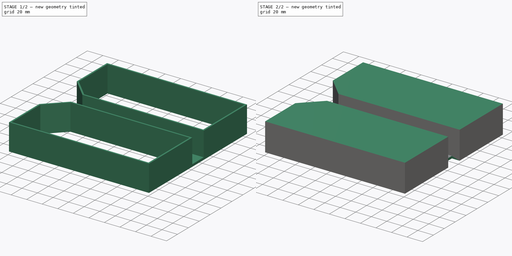
[diagram: build sequence overview — one tinted view per stage of 2, left to right]
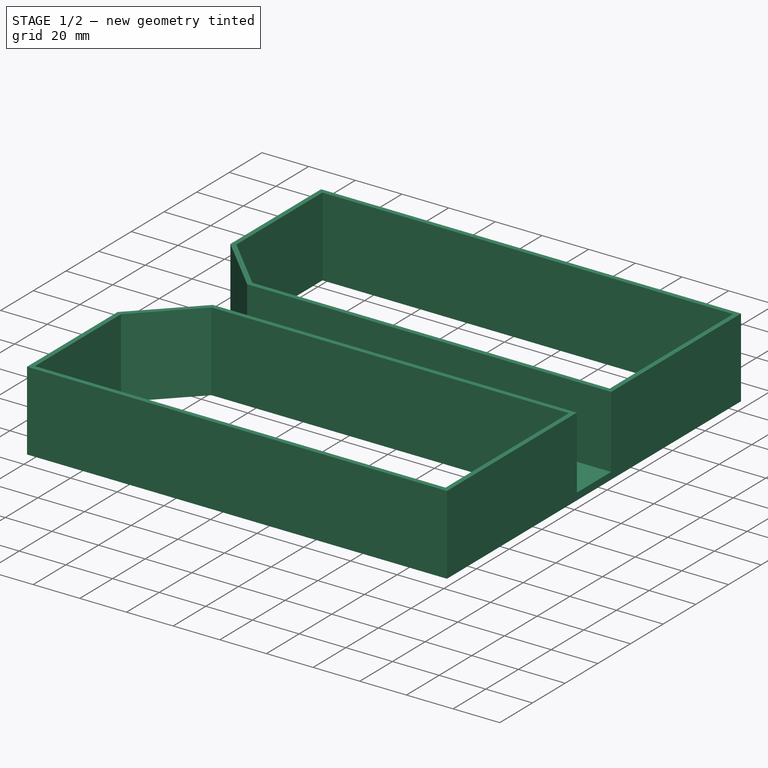
[diagram: stage 1 of 2 — iso view after this stage's code; geometry added in this stage tinted green]
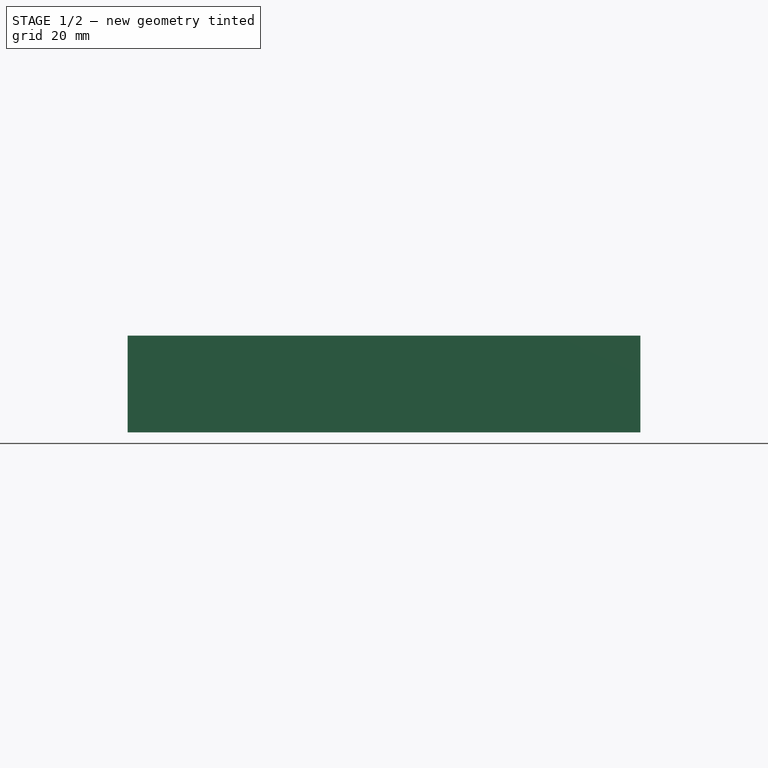
[diagram: stage 1 of 2 — front view after this stage's code; geometry added in this stage tinted green]
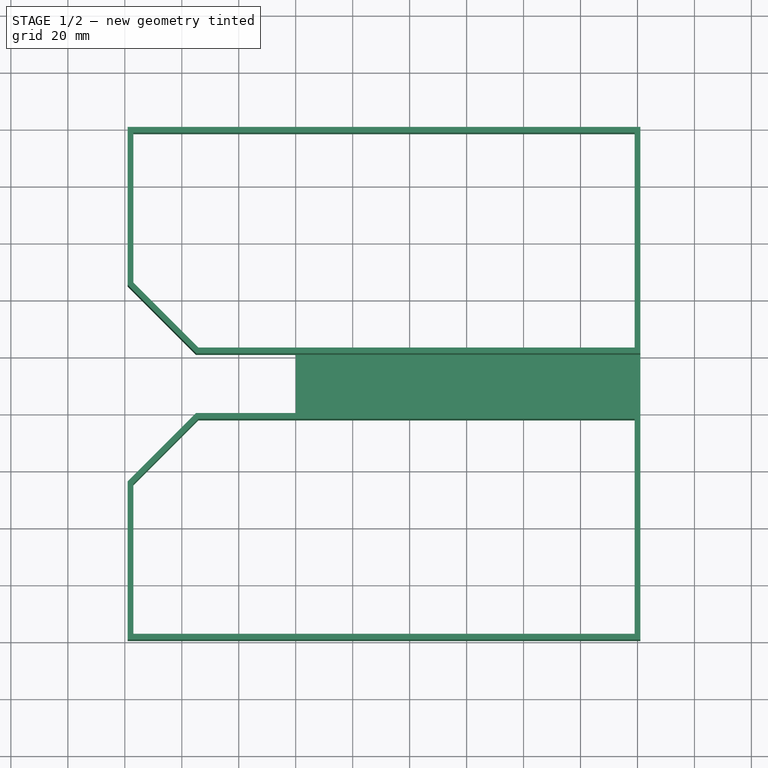
[diagram: stage 1 of 2 — top view after this stage's code; geometry added in this stage tinted green]
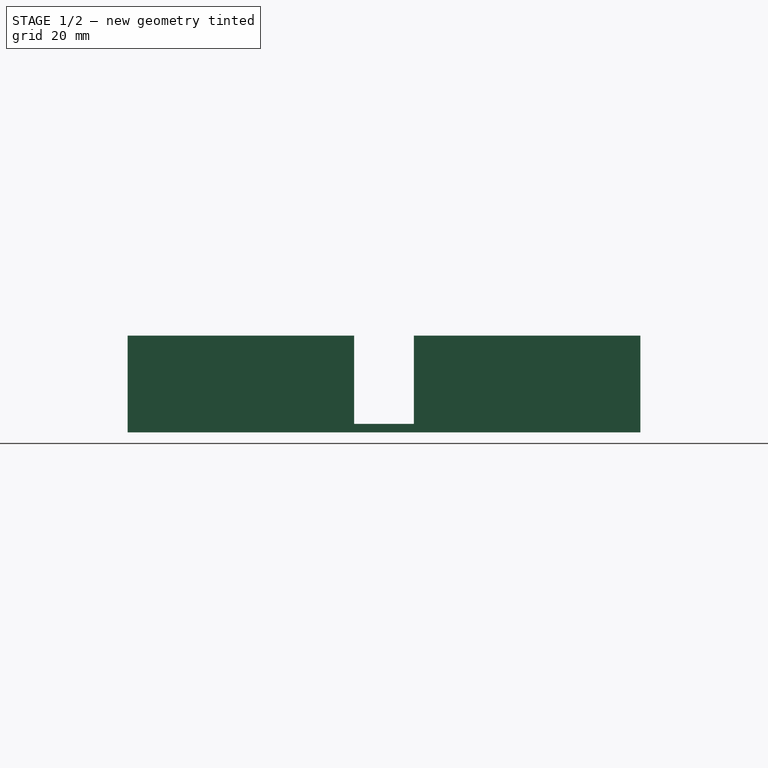
[diagram: stage 1 of 2 — right view after this stage's code; geometry added in this stage tinted green]
FCSTD DOCUMENT  (FreeCAD 1.0R)
Label: badminton_racket_stringing_machine_pockets
License: All rights reserved
LicenseURL: https://en.wikipedia.org/wiki/All_rights_reserved
objects: Sketcher::SketchObject×4, PartDesign::Pad×3, PartDesign::Pocket×1, PartDesign::Body×1
note: 21 computed .brp shape members not serialized (recipe doc carries the construction recipe); baked Part::Feature solids carry a one-line shape summary decoded from their .brp

FEATURE [Sketcher::SketchObject] Sketch
  ArcFitTolerance = 1e-06
  AttachmentSupport = -> [XY_Plane]
  FullyConstrained = true
  MakeInternals = false
  MapMode = 5
  sketch-geometry (4):
    g0: LineSegment StartX=0 StartY=0 StartZ=0 EndX=121 EndY=0 EndZ=0
    g1: LineSegment StartX=121 StartY=0 StartZ=0 EndX=121 EndY=21 EndZ=0
    g2: LineSegment StartX=121 StartY=21 StartZ=0 EndX=0 EndY=21 EndZ=0
    g3: LineSegment StartX=0 StartY=21 StartZ=0 EndX=0 EndY=0 EndZ=0
  constraints (11):
    c: Coincident(g0,g1)
    c: Coincident(g1,g2)
    c: Coincident(g2,g3)
    c: Coincident(g3,g0)
    c: Horizontal(g0)
    c: Horizontal(g2)
    c: Vertical(g1)
    c: Vertical(g3)
    c: Coincident(g0,g-1)
    c: Distance(g2,g2) = 121
    c: Distance(g1,g1) = 21
FEATURE [PartDesign::Pad] Pad
  Direction = (0,0,1)
  Length = 3
  Length2 = 10
  Profile = -> Sketch
  ReferenceAxis = -> Sketch [N_Axis]
  Refine = true
  Suppressed = false
  Type = 0
FEATURE [Sketcher::SketchObject] Sketch001
  ArcFitTolerance = 1e-06
  AttachmentSupport = -> [Pad]
  ExternalGeometry = -> [Pad]
  FullyConstrained = true
  MakeInternals = false
  MapMode = 5
  Placement = pos=(0,0,0) rot=(1,0,0;3.14159rad)
  sketch-geometry (38):
    g0: LineSegment StartX=121 StartY=-100.5 StartZ=0 EndX=121 EndY=-21 EndZ=0
    g1: LineSegment StartX=121 StartY=-21 StartZ=0 EndX=-35 EndY=-21 EndZ=0
    g2: LineSegment StartX=-35 StartY=-21 StartZ=0 EndX=-59 EndY=-45 EndZ=0
    g3: LineSegment StartX=-59 StartY=-45 StartZ=0 EndX=-59 EndY=-100.5 EndZ=0
    g4: LineSegment StartX=-59 StartY=-100.5 StartZ=0 EndX=121 EndY=-100.5 EndZ=0
    g5: LineSegment [constr] StartX=-35 StartY=-21 StartZ=0 EndX=-59 EndY=-21 EndZ=0
    g6: LineSegment [constr] StartX=-59 StartY=-21 StartZ=0 EndX=-59 EndY=-45 EndZ=0
    g7: LineSegment StartX=119 StartY=-98.5 StartZ=0 EndX=119 EndY=-23 EndZ=0
    g8: LineSegment StartX=119 StartY=-23 StartZ=0 EndX=-34.1716 EndY=-23 EndZ=0
    g9: LineSegment StartX=-34.1716 StartY=-23 StartZ=0 EndX=-57 EndY=-45.8284 EndZ=0
    g10: LineSegment StartX=-57 StartY=-45.8284 StartZ=0 EndX=-57 EndY=-98.5 EndZ=0
    g11: LineSegment StartX=-57 StartY=-98.5 StartZ=0 EndX=119 EndY=-98.5 EndZ=0
    g12: LineSegment [constr] StartX=-57 StartY=-98.5 StartZ=0 EndX=-59 EndY=-98.5 EndZ=0
    g13: LineSegment [constr] StartX=-57 StartY=-98.5 StartZ=0 EndX=-57 EndY=-100.5 EndZ=0
    g14: LineSegment [constr] StartX=119 StartY=-98.5 StartZ=0 EndX=121 EndY=-98.5 EndZ=0
    g15: LineSegment [constr] StartX=-34.1716 StartY=-23 StartZ=0 EndX=-34.1716 EndY=-21 EndZ=0
    g16: LineSegment [constr] StartX=-57 StartY=-45.8284 StartZ=0 EndX=-59 EndY=-45.8284 EndZ=0
    g17: LineSegment [constr] StartX=-57 StartY=-45.8284 StartZ=0 EndX=-58.4142 EndY=-44.4142 EndZ=0
    g18: LineSegment [constr] StartX=-34.1716 StartY=-23 StartZ=0 EndX=-35.5858 EndY=-21.5858 EndZ=0
    g19: LineSegment StartX=121 StartY=0 StartZ=0 EndX=-35 EndY=0 EndZ=0
    g20: LineSegment StartX=-35 StartY=0 StartZ=0 EndX=-59 EndY=24 EndZ=0
    g21: LineSegment StartX=-59 StartY=24 StartZ=0 EndX=-59 EndY=79.5 EndZ=0
    g22: LineSegment StartX=-59 StartY=79.5 StartZ=0 EndX=121 EndY=79.5 EndZ=0
    g23: LineSegment StartX=121 StartY=79.5 StartZ=0 EndX=121 EndY=0 EndZ=0
    g24: LineSegment StartX=-57 StartY=77.5 StartZ=0 EndX=-57 EndY=24.8284 EndZ=0
    g25: LineSegment StartX=-57 StartY=24.8284 StartZ=0 EndX=-34.1716 EndY=2 EndZ=0
    g26: LineSegment StartX=-34.1716 StartY=2 StartZ=0 EndX=119 EndY=2 EndZ=0
    g27: LineSegment StartX=119 StartY=2 StartZ=0 EndX=119 EndY=77.5 EndZ=0
    g28: LineSegment StartX=119 StartY=77.5 StartZ=0 EndX=-57 EndY=77.5 EndZ=0
    g29: LineSegment [constr] StartX=119 StartY=77.5 StartZ=0 EndX=119 EndY=79.5 EndZ=0
    g30: LineSegment [constr] StartX=119 StartY=77.5 StartZ=0 EndX=121 EndY=77.5 EndZ=0
    g31: LineSegment [constr] StartX=-57 StartY=77.5 StartZ=0 EndX=-59 EndY=77.5 EndZ=0
    g32: LineSegment [constr] StartX=-57 StartY=24.8284 StartZ=0 EndX=-58.4142 EndY=23.4142 EndZ=0
    g33: LineSegment [constr] StartX=-34.1716 StartY=2 StartZ=0 EndX=-35.5858 EndY=0.585786 EndZ=0
    g34: LineSegment [constr] StartX=119 StartY=2 StartZ=0 EndX=119 EndY=0 EndZ=0
    g35: LineSegment [constr] StartX=-35 StartY=0 StartZ=0 EndX=-59 EndY=0 EndZ=0
    g36: LineSegment [constr] StartX=-59 StartY=24 StartZ=0 EndX=-59 EndY=0 EndZ=0
    g37: LineSegment [constr] StartX=-59 StartY=0 StartZ=0 EndX=-59 EndY=-21 EndZ=0
  constraints (109):
    c: Vertical(g0)
    c: Coincident(g0,g1)
    c: Horizontal(g1)
    c: Coincident(g1,g2)
    c: Coincident(g2,g3)
    c: Vertical(g3)
    c: Coincident(g3,g4)
    c: Coincident(g4,g0)
    c: Horizontal(g4)
    c: Coincident(g5,g1)
    c: Horizontal(g5)
    c: Coincident(g6,g5)
    c: Coincident(g6,g2)
    c: Vertical(g6)
    c: Equal(g6,g5)
    c: Distance(g6,g6) = 24
    c: Vertical(g7)
    c: Coincident(g7,g8)
    c: Horizontal(g8)
    c: Coincident(g8,g9)
    c: Coincident(g9,g10)
    c: Vertical(g10)
    c: Coincident(g10,g11)
    c: Coincident(g11,g7)
    c: Horizontal(g11)
    c: Coincident(g12,g10)
    c: PointOnObject(g12,g3)
    c: Horizontal(g12)
    c: Coincident(g13,g10)
    c: PointOnObject(g13,g4)
    c: Vertical(g13)
    c: PointOnObject(g14,g0)
    c: Horizontal(g14)
    c: Coincident(g7,g14)
    c: Coincident(g15,g8)
    c: PointOnObject(g15,g1)
    c: Vertical(g15)
    c: Coincident(g16,g9)
    c: PointOnObject(g16,g3)
    c: Horizontal(g16)
    c: Coincident(g17,g9)
    c: PointOnObject(g17,g2)
    c: Perpendicular(g17,g2)
    c: Equal(g15,g17)
    c: Equal(g17,g16)
    c: Equal(g12,g13)
    c: Equal(g13,g14)
    c: Distance(g13,g13) = 2
    c: Coincident(g18,g8)
    c: PointOnObject(g18,g2)
    c: Perpendicular(g2,g18)
    c: Equal(g18,g15)
    c: Horizontal(g19)
    c: Coincident(g19,g20)
    c: Coincident(g20,g21)
    c: Vertical(g21)
    c: Coincident(g21,g22)
    c: Horizontal(g22)
    c: Coincident(g22,g23)
    c: Coincident(g23,g19)
    c: Vertical(g23)
    c: Vertical(g24)
    c: Coincident(g24,g25)
    c: Coincident(g25,g26)
    c: Horizontal(g26)
    c: Coincident(g26,g27)
    c: Vertical(g27)
    c: Coincident(g27,g28)
    c: Coincident(g28,g24)
    c: Horizontal(g28)
    c: Coincident(g29,g27)
    c: PointOnObject(g29,g22)
    c: Vertical(g29)
    c: Coincident(g30,g27)
    c: PointOnObject(g30,g23)
    c: Horizontal(g30)
    c: Coincident(g31,g24)
    c: PointOnObject(g31,g21)
    c: Horizontal(g31)
    c: Coincident(g32,g24)
    c: PointOnObject(g32,g20)
    c: Coincident(g33,g25)
    c: PointOnObject(g33,g20)
    c: Coincident(g34,g26)
    c: PointOnObject(g34,g19)
    c: Vertical(g34)
    c: Equal(g34,g30)
    c: Equal(g30,g29)
    c: Equal(g29,g31)
    c: Equal(g31,g32)
    c: Equal(g32,g33)
    c: Equal(g33,g15)
    c: Perpendicular(g20,g32)
    c: Perpendicular(g20,g33)
    c: Coincident(g35,g19)
    c: Horizontal(g35)
    c: Coincident(g36,g20)
    c: Coincident(g36,g35)
    c: Vertical(g36)
    c: Equal(g35,g36)
    c: Equal(g36,g5)
    c: Coincident(g37,g35)
    c: Coincident(g37,g5)
    c: Vertical(g37)
    c: Equal(g23,g0)
    c: DistanceX(g19,g-1) = 35
    c: Distance(g4,g22) = 180
    c: Coincident(g0,g-5)
    c: Coincident(g19,g-5)
FEATURE [PartDesign::Pad] Pad001
  BaseFeature = -> Pad
  Direction = (0,0,-1)
  Length = 34
  Length2 = 10
  Profile = -> Sketch001
  ReferenceAxis = -> Sketch001 [N_Axis]
  Refine = true
  Reversed = true
  Suppressed = false
  Type = 0
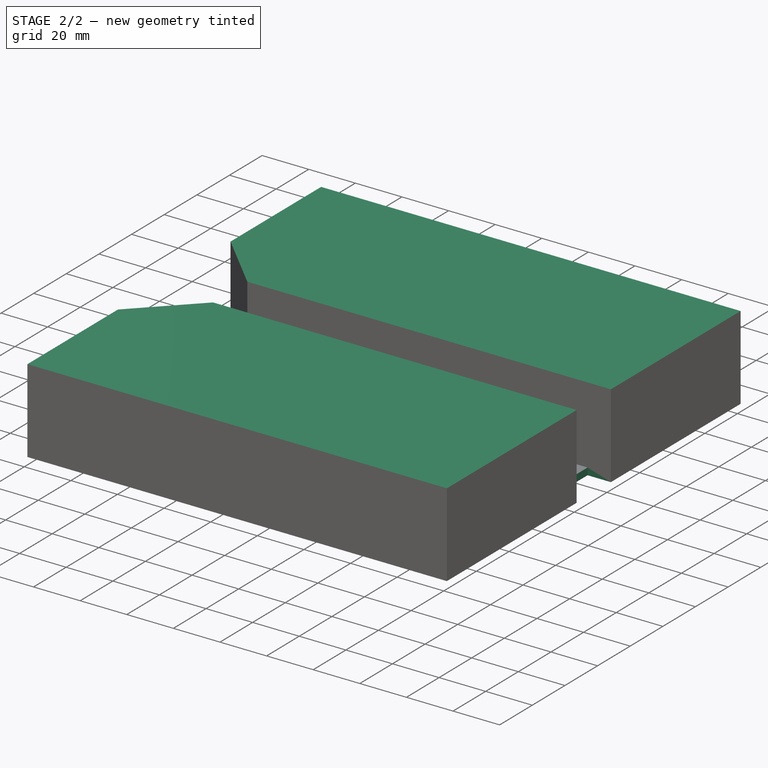
[diagram: stage 2 of 2 — iso view after this stage's code; geometry added in this stage tinted green]
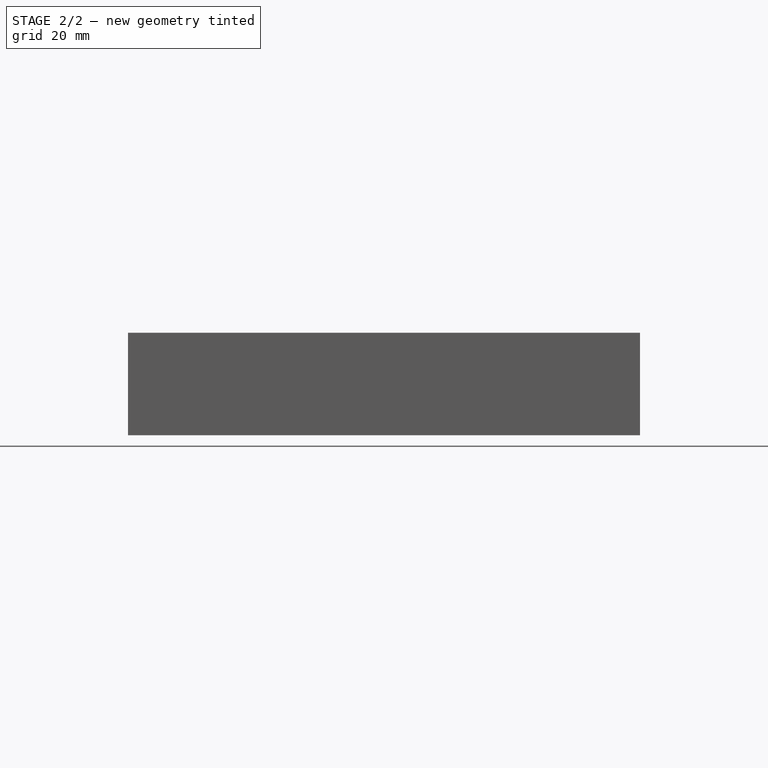
[diagram: stage 2 of 2 — front view after this stage's code; geometry added in this stage tinted green]
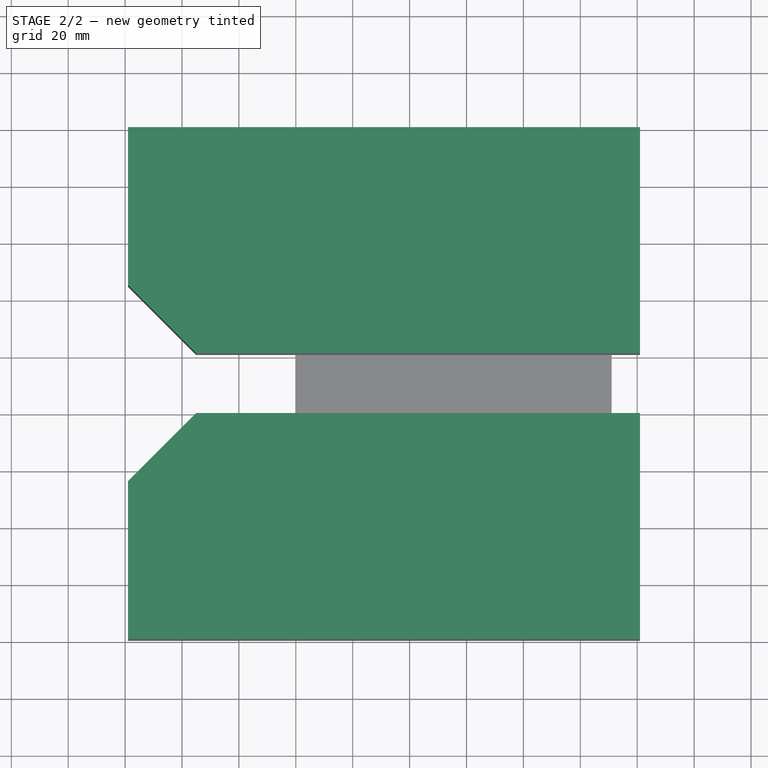
[diagram: stage 2 of 2 — top view after this stage's code; geometry added in this stage tinted green]
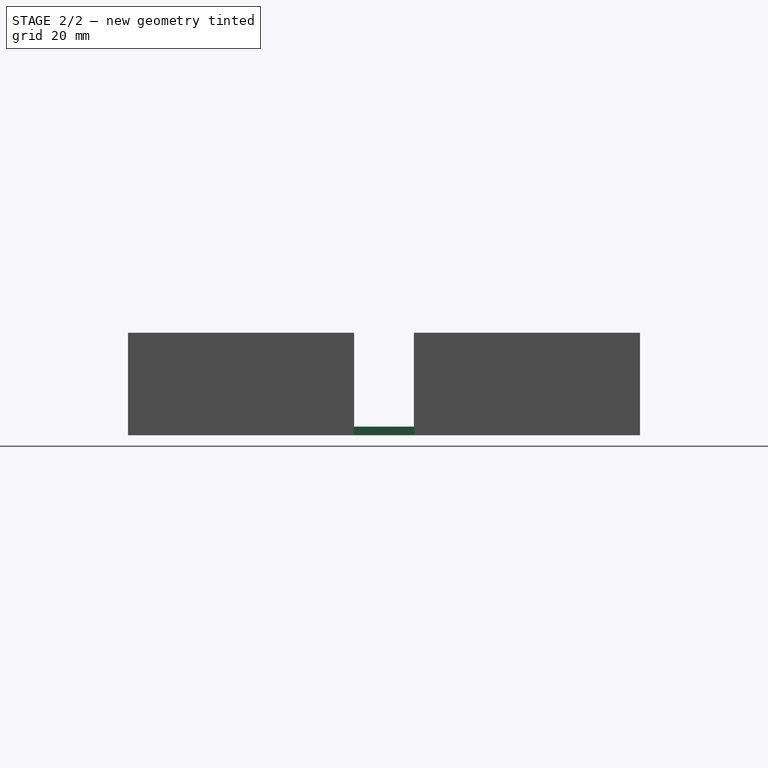
[diagram: stage 2 of 2 — right view after this stage's code; geometry added in this stage tinted green]
FEATURE [Sketcher::SketchObject] Sketch002
  ArcFitTolerance = 1e-06
  AttachmentSupport = -> [Pad001]
  ExternalGeometry = -> [Pad001]
  FullyConstrained = true
  MakeInternals = false
  MapMode = 5
  Placement = pos=(0,0,34) rot=(0,0,1;0rad)
  sketch-geometry (10):
    g0: LineSegment StartX=-59 StartY=-79.5 StartZ=0 EndX=-59 EndY=-24 EndZ=0
    g1: LineSegment StartX=-59 StartY=-24 StartZ=0 EndX=-35 EndY=0 EndZ=0
    g2: LineSegment StartX=-35 StartY=0 StartZ=0 EndX=121 EndY=0 EndZ=0
    g3: LineSegment StartX=121 StartY=0 StartZ=0 EndX=121 EndY=-79.5 EndZ=0
    g4: LineSegment StartX=121 StartY=-79.5 StartZ=0 EndX=-59 EndY=-79.5 EndZ=0
    g5: LineSegment StartX=-35 StartY=21 StartZ=0 EndX=-59 EndY=45 EndZ=0
    g6: LineSegment StartX=-59 StartY=45 StartZ=0 EndX=-59 EndY=100.5 EndZ=0
    g7: LineSegment StartX=-59 StartY=100.5 StartZ=0 EndX=121 EndY=100.5 EndZ=0
    g8: LineSegment StartX=121 StartY=100.5 StartZ=0 EndX=121 EndY=21 EndZ=0
    g9: LineSegment StartX=121 StartY=21 StartZ=0 EndX=-35 EndY=21 EndZ=0
  constraints (20):
    c: Coincident(g-4,g0)
    c: Coincident(g0,g-5)
    c: Coincident(g0,g1)
    c: Coincident(g1,g-6)
    c: Coincident(g1,g2)
    c: Coincident(g2,g-7)
    c: Coincident(g2,g3)
    c: Coincident(g3,g-7)
    c: Coincident(g3,g4)
    c: Coincident(g4,g0)
    c: Coincident(g-10,g5)
    c: Coincident(g5,g-11)
    c: Coincident(g5,g6)
    c: Coincident(g6,g-12)
    c: Coincident(g6,g7)
    c: Coincident(g7,g-12)
    c: Coincident(g7,g8)
    c: Coincident(g8,g-9)
    c: Coincident(g8,g9)
    c: Coincident(g9,g5)
FEATURE [PartDesign::Pad] Pad002
  BaseFeature = -> Pad001
  Direction = (0,0,1)
  Length = 2
  Length2 = 10
  Profile = -> Sketch002
  ReferenceAxis = -> Sketch002 [N_Axis]
  Refine = true
  Suppressed = false
  Type = 0
FEATURE [Sketcher::SketchObject] Sketch003
  ArcFitTolerance = 1e-06
  AttachmentSupport = -> [Pad002]
  ExternalGeometry = -> [Pad002]
  FullyConstrained = true
  MakeInternals = false
  MapMode = 5
  Placement = pos=(0,0,0) rot=(1,0,0;3.14159rad)
  sketch-geometry (6):
    g0: LineSegment [constr] StartX=0 StartY=0 StartZ=0 EndX=121 EndY=0 EndZ=0
    g1: LineSegment [constr] StartX=0 StartY=-21 StartZ=0 EndX=121 EndY=-21 EndZ=0
    g2: LineSegment StartX=121 StartY=0 StartZ=0 EndX=111 EndY=0 EndZ=0
    g3: LineSegment StartX=111 StartY=0 StartZ=0 EndX=111 EndY=-21 EndZ=0
    g4: LineSegment StartX=111 StartY=-21 StartZ=0 EndX=121 EndY=-21 EndZ=0
    g5: LineSegment StartX=121 StartY=-21 StartZ=0 EndX=121 EndY=0 EndZ=0
  constraints (17):
    c: Coincident(g0,g-1)
    c: PointOnObject(g0,g-5)
    c: Horizontal(g0)
    c: Coincident(g1,g-3)
    c: PointOnObject(g1,g-5)
    c: Horizontal(g1)
    c: Coincident(g2,g3)
    c: Coincident(g3,g4)
    c: Coincident(g4,g5)
    c: Coincident(g5,g2)
    c: Horizontal(g2)
    c: Horizontal(g4)
    c: Vertical(g3)
    c: Vertical(g5)
    c: Coincident(g2,g0)
    c: PointOnObject(g3,g1)
    c: Distance(g2,g2) = 10
FEATURE [PartDesign::Pocket] Pocket
  BaseFeature = -> Pad002
  Direction = (0,0,1)
  Length = 5
  Length2 = 5
  Profile = -> Sketch003
  ReferenceAxis = -> Sketch003 [N_Axis]
  Refine = true
  Suppressed = false
  Type = 1
FEATURE [PartDesign::Body] Body
  AllowCompound = false
  Group = -> [Sketch,Pad,Sketch001,Pad001,Sketch002,Pad002,Sketch003,Pocket]
  Origin = -> Origin
  Tip = -> Pocket
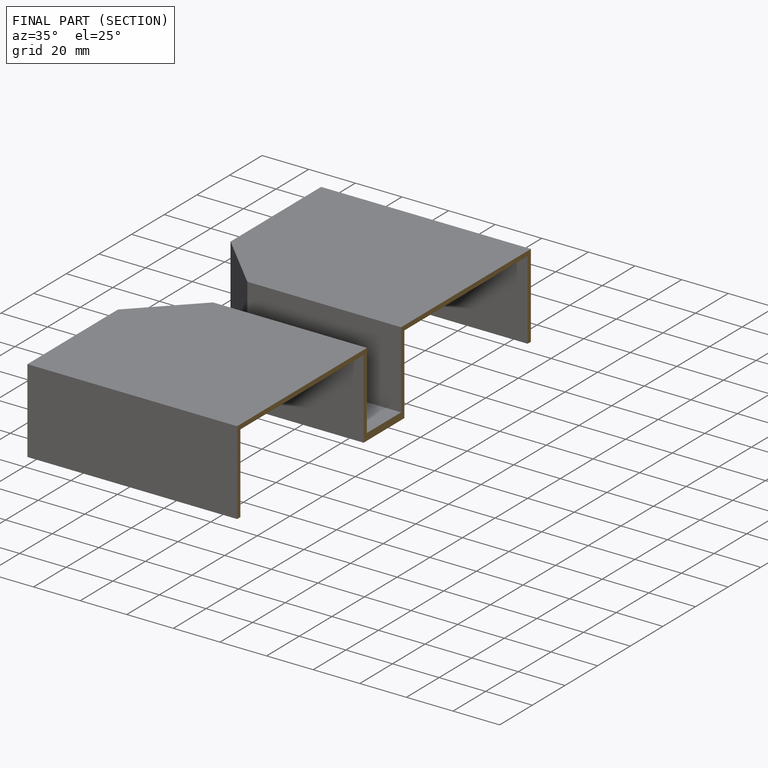
[diagram: finished part — half-section view (interior)]
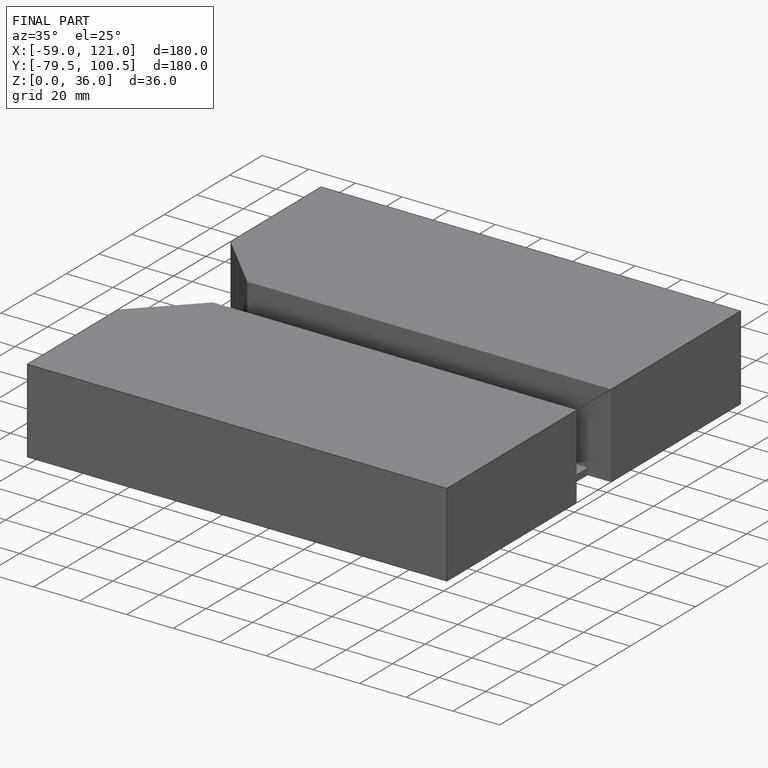
[diagram: finished part — iso view with bounding-box wireframe]
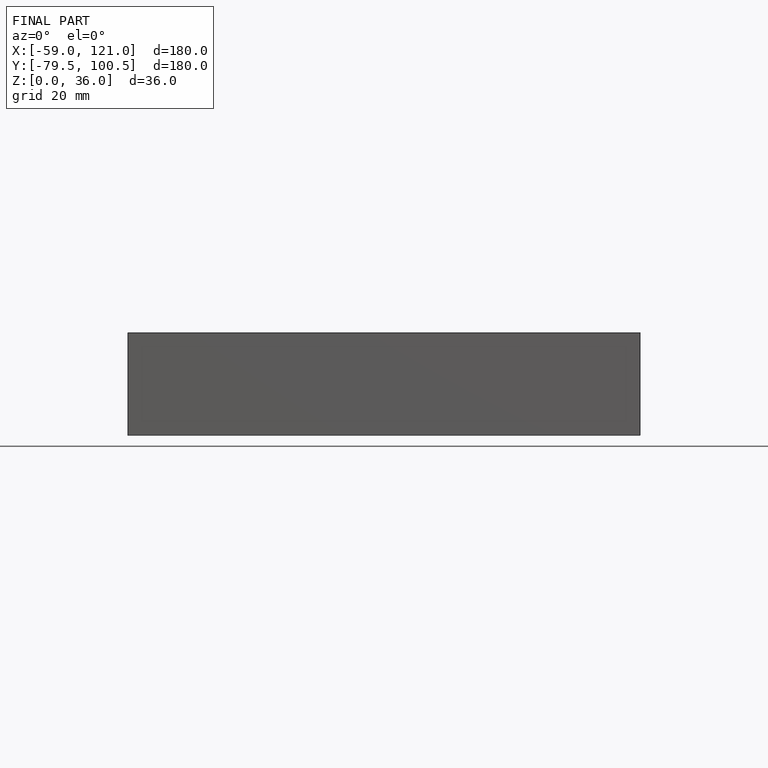
[diagram: finished part — front view with bounding-box wireframe]
